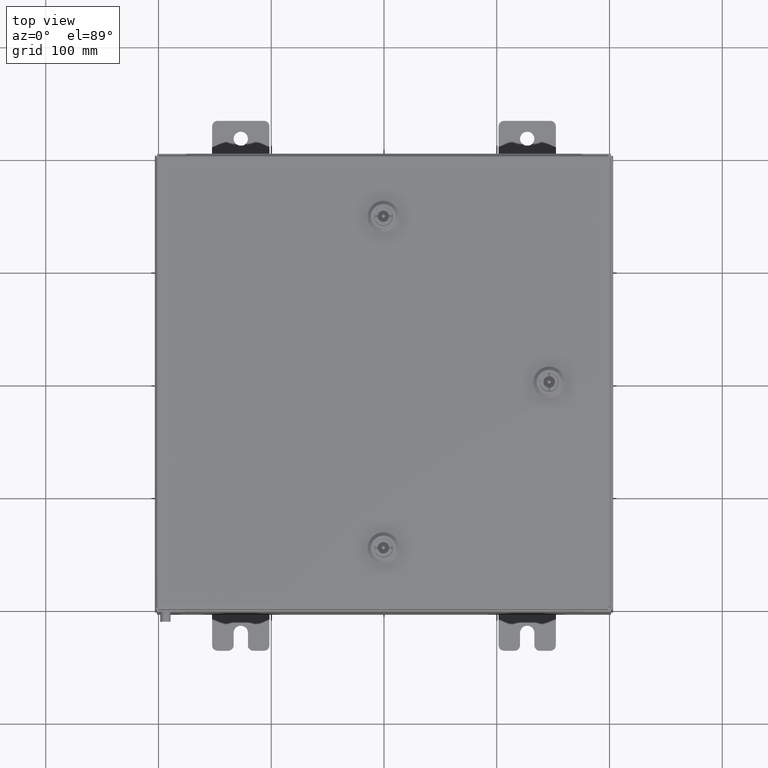
[diagram: clean part render]
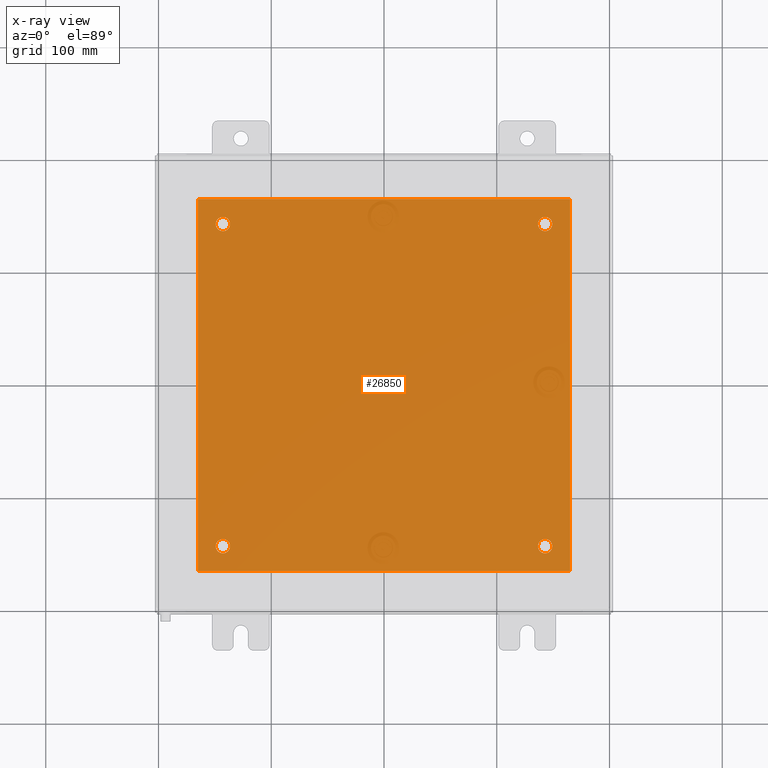
[diagram: x-ray — body ghosted, one internal face saturated and labeled with its STEP entity id]
A machine part, top view, then the same camera in x-ray: the body is ghosted and one INTERNAL B-rep face — a face not visible from any outside direction — is saturated and labeled: STEP entity #26850.
In plain terms, the highlighted planar face has unit normal (0, 0, -1).
Its self-contained STEP definition (entity closure, byte-faithful):
#193 = CARTESIAN_POINT ( 'NONE',  ( 5.625000000000002700, -5.625000000000000900, -0.1039999999999999800 ) ) ;
#460 = VERTEX_POINT ( 'NONE', #38027 ) ;
#853 = EDGE_LOOP ( 'NONE', ( #52072, #1453, #14130, #32758 ) ) ;
#1453 = ORIENTED_EDGE ( 'NONE', *, *, #10875, .F. ) ;
#3073 = CARTESIAN_POINT ( 'NONE',  ( 6.500000000000000000, -6.499999999999999100, -0.1039999999999999800 ) ) ;
#3554 = FACE_BOUND ( 'NONE', #22225, .T. ) ;
#3569 = ORIENTED_EDGE ( 'NONE', *, *, #24344, .T. ) ;
#4652 = DIRECTION ( 'NONE',  ( 0.0000000000000000000, 1.000000000000000000, 0.0000000000000000000 ) ) ;
#5030 = DIRECTION ( 'NONE',  ( -1.000000000000000000, 0.0000000000000000000, 0.0000000000000000000 ) ) ;
#5146 = EDGE_CURVE ( 'NONE', #46751, #8781, #25816, .T. ) ;
#5337 = EDGE_CURVE ( 'NONE', #8531, #57743, #58299, .T. ) ;
#7056 = CARTESIAN_POINT ( 'NONE',  ( -5.875000000000001800, -5.625000000000000900, -0.1039999999999999800 ) ) ;
#7602 = CARTESIAN_POINT ( 'NONE',  ( -6.500000000000000000, -6.499999999999999100, -0.1039999999999999800 ) ) ;
#7810 = DIRECTION ( 'NONE',  ( -0.0000000000000000000, -0.0000000000000000000, 1.000000000000000000 ) ) ;
#8531 = VERTEX_POINT ( 'NONE', #35211 ) ;
#8781 = VERTEX_POINT ( 'NONE', #50597 ) ;
#9584 = VERTEX_POINT ( 'NONE', #40554 ) ;
#10875 = EDGE_CURVE ( 'NONE', #9584, #46751, #23984, .T. ) ;
#11168 = DIRECTION ( 'NONE',  ( -0.0000000000000000000, -0.0000000000000000000, 1.000000000000000000 ) ) ;
#11199 = CARTESIAN_POINT ( 'NONE',  ( -5.625000000000002700, 5.625000000000000900, -0.1039999999999999800 ) ) ;
#14130 = ORIENTED_EDGE ( 'NONE', *, *, #37116, .F. ) ;
#14835 = CARTESIAN_POINT ( 'NONE',  ( 5.875000000000000900, -5.625000000000000900, -0.1039999999999999800 ) ) ;
#15214 = PLANE ( 'NONE',  #55443 ) ;
#15260 = CARTESIAN_POINT ( 'NONE',  ( 5.625000000000002700, -5.625000000000000900, -0.1039999999999999800 ) ) ;
#15886 = CIRCLE ( 'NONE', #60620, 0.2499999999999987000 ) ;
#15962 = EDGE_CURVE ( 'NONE', #44965, #39821, #57713, .T. ) ;
#16090 = DIRECTION ( 'NONE',  ( -1.000000000000000000, 0.0000000000000000000, 0.0000000000000000000 ) ) ;
#16180 = AXIS2_PLACEMENT_3D ( 'NONE', #11199, #45027, #16090 ) ;
#17417 = CARTESIAN_POINT ( 'NONE',  ( -6.500000000000000000, -6.499999999999999100, -0.1039999999999999800 ) ) ;
#17564 = CIRCLE ( 'NONE', #21259, 0.2499999999999998100 ) ;
#18551 = AXIS2_PLACEMENT_3D ( 'NONE', #40115, #11168, #45004 ) ;
#20034 = DIRECTION ( 'NONE',  ( 0.0000000000000000000, 0.0000000000000000000, -1.000000000000000000 ) ) ;
#20075 = DIRECTION ( 'NONE',  ( -1.000000000000000000, 0.0000000000000000000, 0.0000000000000000000 ) ) ;
#21259 = AXIS2_PLACEMENT_3D ( 'NONE', #36757, #7810, #41645 ) ;
#21622 = EDGE_LOOP ( 'NONE', ( #35087, #34055 ) ) ;
#22061 = VERTEX_POINT ( 'NONE', #32013 ) ;
#22225 = EDGE_LOOP ( 'NONE', ( #52715, #26186 ) ) ;
#23984 = LINE ( 'NONE', #17417, #36834 ) ;
#24280 = ORIENTED_EDGE ( 'NONE', *, *, #45319, .T. ) ;
#24344 = EDGE_CURVE ( 'NONE', #27835, #22061, #15886, .T. ) ;
#24775 = DIRECTION ( 'NONE',  ( -0.0000000000000000000, -0.0000000000000000000, 1.000000000000000000 ) ) ;
#24950 = CARTESIAN_POINT ( 'NONE',  ( -6.500000000000000000, 6.500000000000000900, -0.1039999999999999800 ) ) ;
#25734 = CARTESIAN_POINT ( 'NONE',  ( -5.625000000000002700, -5.625000000000000900, -0.1039999999999999800 ) ) ;
#25816 = LINE ( 'NONE', #40535, #41708 ) ;
#26186 = ORIENTED_EDGE ( 'NONE', *, *, #5337, .T. ) ;
#26850 = ADVANCED_FACE ( 'NONE', ( #42172, #3554, #30793, #40639, #53514 ), #15214, .T. ) ;
#27024 = EDGE_CURVE ( 'NONE', #22061, #27835, #62686, .T. ) ;
#27127 = DIRECTION ( 'NONE',  ( 1.000000000000000000, 0.0000000000000000000, 0.0000000000000000000 ) ) ;
#27801 = DIRECTION ( 'NONE',  ( -0.0000000000000000000, -0.0000000000000000000, 1.000000000000000000 ) ) ;
#27835 = VERTEX_POINT ( 'NONE', #60869 ) ;
#28721 = DIRECTION ( 'NONE',  ( -1.000000000000000000, -0.0000000000000000000, -0.0000000000000000000 ) ) ;
#29437 = LINE ( 'NONE', #62593, #40822 ) ;
#30551 = DIRECTION ( 'NONE',  ( -1.000000000000000000, 0.0000000000000000000, 0.0000000000000000000 ) ) ;
#30793 = FACE_BOUND ( 'NONE', #40298, .T. ) ;
#31800 = VECTOR ( 'NONE', #56040, 39.37007874015748100 ) ;
#32013 = CARTESIAN_POINT ( 'NONE',  ( 5.875000000000000900, 5.625000000000000900, -0.1039999999999999800 ) ) ;
#32758 = ORIENTED_EDGE ( 'NONE', *, *, #45013, .F. ) ;
#33295 = LINE ( 'NONE', #7602, #31800 ) ;
#33984 = DIRECTION ( 'NONE',  ( -0.0000000000000000000, -0.0000000000000000000, 1.000000000000000000 ) ) ;
#34055 = ORIENTED_EDGE ( 'NONE', *, *, #62509, .T. ) ;
#34723 = CIRCLE ( 'NONE', #16180, 0.2499999999999998100 ) ;
#35087 = ORIENTED_EDGE ( 'NONE', *, *, #15962, .T. ) ;
#35161 = EDGE_CURVE ( 'NONE', #58262, #460, #17564, .T. ) ;
#35211 = CARTESIAN_POINT ( 'NONE',  ( 5.375000000000003600, -5.625000000000000900, -0.1039999999999999800 ) ) ;
#36576 = AXIS2_PLACEMENT_3D ( 'NONE', #193, #33984, #5030 ) ;
#36757 = CARTESIAN_POINT ( 'NONE',  ( -5.625000000000002700, 5.625000000000000900, -0.1039999999999999800 ) ) ;
#36834 = VECTOR ( 'NONE', #27127, 39.37007874015748100 ) ;
#37116 = EDGE_CURVE ( 'NONE', #51955, #9584, #33295, .T. ) ;
#38027 = CARTESIAN_POINT ( 'NONE',  ( -5.375000000000002700, 5.625000000000000900, -0.1039999999999999800 ) ) ;
#38691 = AXIS2_PLACEMENT_3D ( 'NONE', #25734, #59554, #30551 ) ;
#39821 = VERTEX_POINT ( 'NONE', #7056 ) ;
#40115 = CARTESIAN_POINT ( 'NONE',  ( 5.625000000000002700, 5.625000000000000900, -0.1039999999999999800 ) ) ;
#40298 = EDGE_LOOP ( 'NONE', ( #49704, #3569 ) ) ;
#40535 = CARTESIAN_POINT ( 'NONE',  ( 6.500000000000000000, -6.499999999999999100, -0.1039999999999999800 ) ) ;
#40554 = CARTESIAN_POINT ( 'NONE',  ( -6.500000000000000000, -6.499999999999999100, -0.1039999999999999800 ) ) ;
#40639 = FACE_BOUND ( 'NONE', #60998, .T. ) ;
#40822 = VECTOR ( 'NONE', #28721, 39.37007874015748100 ) ;
#41645 = DIRECTION ( 'NONE',  ( -1.000000000000000000, 0.0000000000000000000, 0.0000000000000000000 ) ) ;
#41708 = VECTOR ( 'NONE', #4652, 39.37007874015748100 ) ;
#42172 = FACE_BOUND ( 'NONE', #21622, .T. ) ;
#42200 = CARTESIAN_POINT ( 'NONE',  ( -5.875000000000001800, 5.625000000000000900, -0.1039999999999999800 ) ) ;
#42356 = CIRCLE ( 'NONE', #36576, 0.2499999999999987000 ) ;
#42936 = CARTESIAN_POINT ( 'NONE',  ( -5.375000000000002700, -5.625000000000000900, -0.1039999999999999800 ) ) ;
#44965 = VERTEX_POINT ( 'NONE', #42936 ) ;
#45004 = DIRECTION ( 'NONE',  ( -1.000000000000000000, 0.0000000000000000000, 0.0000000000000000000 ) ) ;
#45013 = EDGE_CURVE ( 'NONE', #8781, #51955, #29437, .T. ) ;
#45027 = DIRECTION ( 'NONE',  ( -0.0000000000000000000, -0.0000000000000000000, 1.000000000000000000 ) ) ;
#45319 = EDGE_CURVE ( 'NONE', #460, #58262, #34723, .T. ) ;
#46751 = VERTEX_POINT ( 'NONE', #3073 ) ;
#48540 = AXIS2_PLACEMENT_3D ( 'NONE', #15260, #49072, #20075 ) ;
#49023 = CARTESIAN_POINT ( 'NONE',  ( 0.0000000000000000000, 0.0000000000000000000, -0.1039999999999999800 ) ) ;
#49072 = DIRECTION ( 'NONE',  ( -0.0000000000000000000, -0.0000000000000000000, 1.000000000000000000 ) ) ;
#49704 = ORIENTED_EDGE ( 'NONE', *, *, #27024, .T. ) ;
#50597 = CARTESIAN_POINT ( 'NONE',  ( 6.500000000000000000, 6.500000000000000900, -0.1039999999999999800 ) ) ;
#51556 = AXIS2_PLACEMENT_3D ( 'NONE', #53749, #24775, #58577 ) ;
#51955 = VERTEX_POINT ( 'NONE', #24950 ) ;
#52072 = ORIENTED_EDGE ( 'NONE', *, *, #5146, .F. ) ;
#52715 = ORIENTED_EDGE ( 'NONE', *, *, #52890, .T. ) ;
#52890 = EDGE_CURVE ( 'NONE', #57743, #8531, #42356, .T. ) ;
#53514 = FACE_OUTER_BOUND ( 'NONE', #853, .T. ) ;
#53749 = CARTESIAN_POINT ( 'NONE',  ( -5.625000000000002700, -5.625000000000000900, -0.1039999999999999800 ) ) ;
#53890 = DIRECTION ( 'NONE',  ( -1.000000000000000000, 0.0000000000000000000, -0.0000000000000000000 ) ) ;
#55443 = AXIS2_PLACEMENT_3D ( 'NONE', #49023, #20034, #53890 ) ;
#56040 = DIRECTION ( 'NONE',  ( -0.0000000000000000000, -1.000000000000000000, -0.0000000000000000000 ) ) ;
#56274 = CIRCLE ( 'NONE', #51556, 0.2499999999999998100 ) ;
#56802 = CARTESIAN_POINT ( 'NONE',  ( 5.625000000000002700, 5.625000000000000900, -0.1039999999999999800 ) ) ;
#57713 = CIRCLE ( 'NONE', #38691, 0.2499999999999998100 ) ;
#57743 = VERTEX_POINT ( 'NONE', #14835 ) ;
#58262 = VERTEX_POINT ( 'NONE', #42200 ) ;
#58299 = CIRCLE ( 'NONE', #48540, 0.2499999999999987000 ) ;
#58577 = DIRECTION ( 'NONE',  ( -1.000000000000000000, 0.0000000000000000000, 0.0000000000000000000 ) ) ;
#59554 = DIRECTION ( 'NONE',  ( -0.0000000000000000000, -0.0000000000000000000, 1.000000000000000000 ) ) ;
#60170 = ORIENTED_EDGE ( 'NONE', *, *, #35161, .T. ) ;
#60620 = AXIS2_PLACEMENT_3D ( 'NONE', #56802, #27801, #61642 ) ;
#60869 = CARTESIAN_POINT ( 'NONE',  ( 5.375000000000003600, 5.625000000000000900, -0.1039999999999999800 ) ) ;
#60998 = EDGE_LOOP ( 'NONE', ( #24280, #60170 ) ) ;
#61642 = DIRECTION ( 'NONE',  ( -1.000000000000000000, 0.0000000000000000000, 0.0000000000000000000 ) ) ;
#62509 = EDGE_CURVE ( 'NONE', #39821, #44965, #56274, .T. ) ;
#62593 = CARTESIAN_POINT ( 'NONE',  ( -6.500000000000000000, 6.500000000000000900, -0.1039999999999999800 ) ) ;
#62686 = CIRCLE ( 'NONE', #18551, 0.2499999999999987000 ) ;